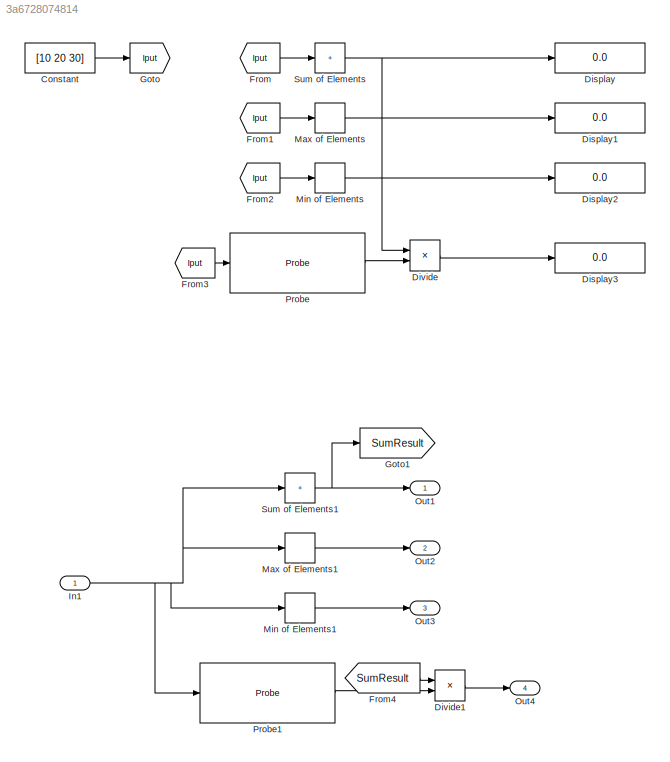
MODEL slx_3a6728074814
KIND model
CONFIG AbsTol = auto
CONFIG EnableMultiTasking = off
CONFIG FixedStep = auto
CONFIG MaxStep = auto
CONFIG MinStep = auto
CONFIG RelTol = 1e-3
CONFIG SampleTimeConstraint = Unconstrained
CONFIG SolverName = FixedStepDiscrete
CONFIG StartTime = 0.0
CONFIG StopTime = 10.0
BLOCK [Constant] Constant
  Value = [10 20 30]
BLOCK [Display] Display
  Decimation = 1
  Ports = [1]
BLOCK [Display] Display1
  Decimation = 1
  Ports = [1]
BLOCK [Display] Display2
  Decimation = 1
  Ports = [1]
BLOCK [Display] Display3
  Decimation = 1
  Ports = [1]
BLOCK [Product] Divide
  Inputs = */
  Ports = [2, 1]
BLOCK [Product] Divide1
  Inputs = */
  Ports = [2, 1]
BLOCK [From] From
  GotoTag = Iput
BLOCK [From] From1
  GotoTag = Iput
BLOCK [From] From2
  GotoTag = Iput
BLOCK [From] From3
  GotoTag = Iput
BLOCK [From] From4
  GotoTag = SumResult
BLOCK [Goto] Goto
  GotoTag = Iput
BLOCK [Goto] Goto1
  GotoTag = SumResult
BLOCK [Inport] In1
  PortDimensions = 10
BLOCK [MinMax] Max of Elements
  Function = max
  Ports = [1, 1]
BLOCK [MinMax] Max of Elements1
  Function = max
  Ports = [1, 1]
BLOCK [MinMax] Min of Elements
  Ports = [1, 1]
BLOCK [MinMax] Min of Elements1
  Ports = [1, 1]
BLOCK [Outport] Out1
BLOCK [Outport] Out2
  Port = 2
BLOCK [Outport] Out3
  Port = 3
BLOCK [Outport] Out4
  Port = 4
BLOCK [Probe] Probe
  Ports = [1, 1]
  ProbeComplexSignal = off
  ProbeSampleTime = off
BLOCK [Probe] Probe1
  Ports = [1, 1]
  ProbeComplexSignal = off
  ProbeSampleTime = off
BLOCK [Sum] Sum of Elements
  IconShape = rectangular
  Inputs = +
  Ports = [1, 1]
BLOCK [Sum] Sum of Elements1
  IconShape = rectangular
  Inputs = +
  Ports = [1, 1]
LINE Constant:1 -> Goto:1
LINE Divide1:1 -> Out4:1
LINE Divide:1 -> Display3:1
LINE From1:1 -> Max of Elements:1
LINE From2:1 -> Min of Elements:1
LINE From3:1 -> Probe:1
LINE From4:1 -> Divide1:1
LINE From:1 -> Sum of Elements:1
NET In1:1 -> Max of Elements1:1, Min of Elements1:1, Probe1:1, Sum of Elements1:1
LINE Max of Elements1:1 -> Out2:1
LINE Max of Elements:1 -> Display1:1
LINE Min of Elements1:1 -> Out3:1
LINE Min of Elements:1 -> Display2:1
LINE Probe1:1 -> Divide1:2
LINE Probe:1 -> Divide:2
NET Sum of Elements1:1 -> Goto1:1, Out1:1
NET Sum of Elements:1 -> Display:1, Divide:1
note: NET lines group one-source signal fan-out (src -> all destinations, sorted); 1:1 wires keep LINE
